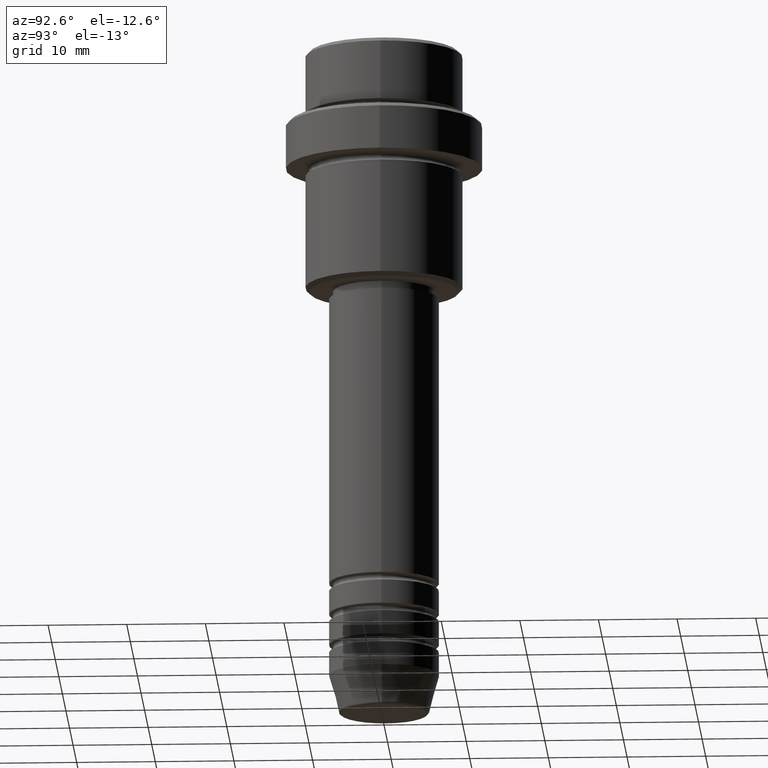
[diagram: clean part render]
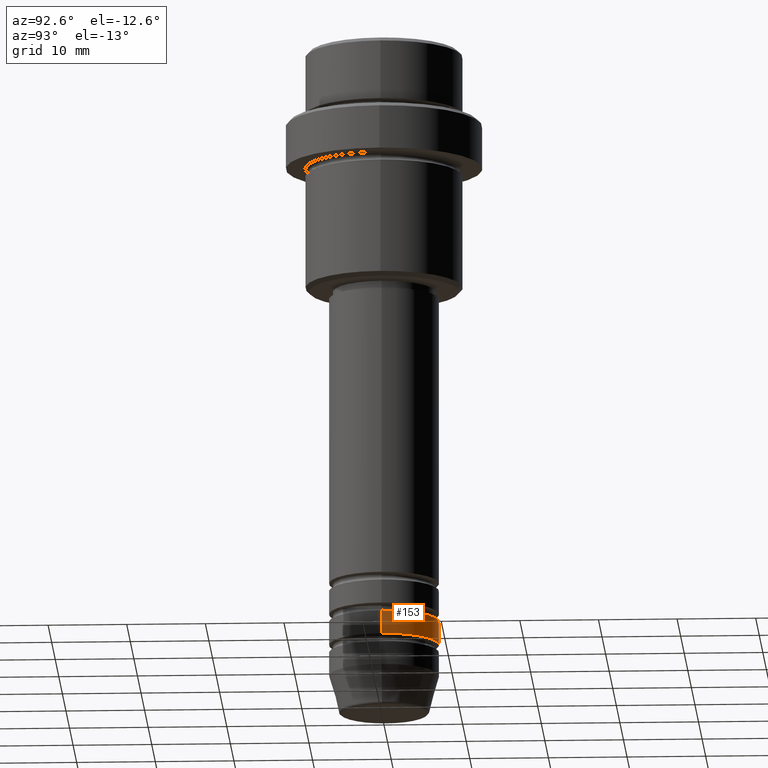
[diagram: same view with one face highlighted and labeled with its STEP entity id]
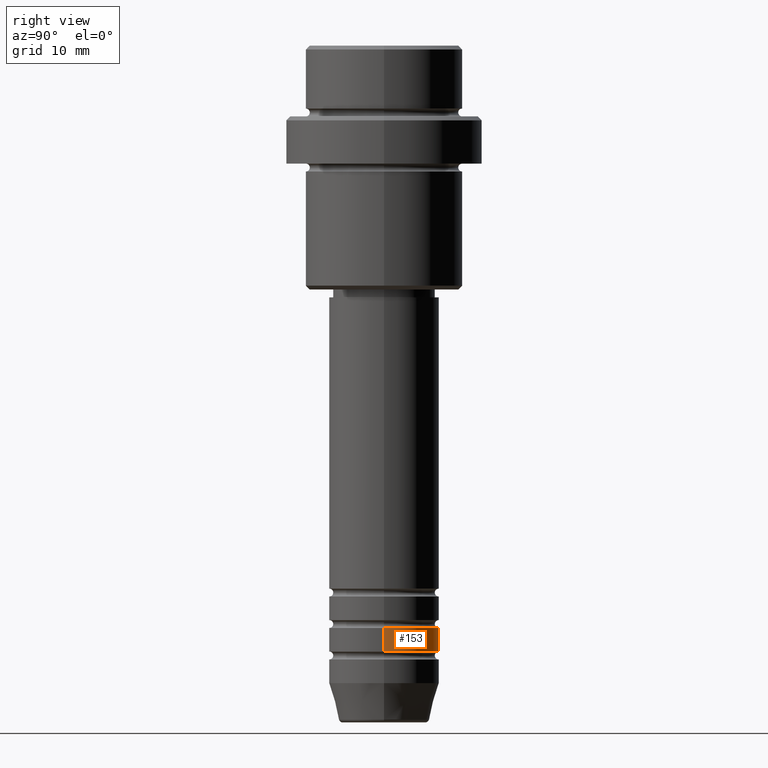
[diagram: same view with one face highlighted and labeled with its STEP entity id]
A machine part, auxiliary view. The second image highlights one B-rep face of the part: STEP entity #153.
A second angle (right view) of the same face is appended — the face is thin or edge-on in the first view.
In plain terms, the highlighted cylindrical surface (partial cylindrical patch) has radius 7 mm, axis along (-0, -0, 1).
Its self-contained STEP definition (entity closure, byte-faithful):
#29 = LINE ( 'NONE', #1332, #1052 ) ;
#84 = VERTEX_POINT ( 'NONE', #1278 ) ;
#109 = DIRECTION ( 'NONE',  ( -0.000000000000000000, -0.000000000000000000, 1.000000000000000000 ) ) ;
#121 = AXIS2_PLACEMENT_3D ( 'NONE', #830, #1254, #398 ) ;
#152 = CARTESIAN_POINT ( 'NONE',  ( 0.000000000000000000, 0.000000000000000000, -76.99999999999988631 ) ) ;
#153 = ADVANCED_FACE ( 'NONE', ( #764 ), #545, .T. ) ;
#191 = CIRCLE ( 'NONE', #121, 7.000000000000000000 ) ;
#246 = DIRECTION ( 'NONE',  ( -0.000000000000000000, -0.000000000000000000, 1.000000000000000000 ) ) ;
#309 = EDGE_CURVE ( 'NONE', #84, #468, #453, .T. ) ;
#323 = EDGE_CURVE ( 'NONE', #84, #360, #29, .T. ) ;
#353 = VERTEX_POINT ( 'NONE', #1225 ) ;
#360 = VERTEX_POINT ( 'NONE', #519 ) ;
#398 = DIRECTION ( 'NONE',  ( 1.000000000000000000, 0.000000000000000000, 0.000000000000000000 ) ) ;
#431 = ORIENTED_EDGE ( 'NONE', *, *, #323, .F. ) ;
#453 = CIRCLE ( 'NONE', #541, 7.000000000000000000 ) ;
#468 = VERTEX_POINT ( 'NONE', #1266 ) ;
#487 = EDGE_CURVE ( 'NONE', #360, #353, #191, .T. ) ;
#490 = DIRECTION ( 'NONE',  ( -0.000000000000000000, -0.000000000000000000, 1.000000000000000000 ) ) ;
#519 = CARTESIAN_POINT ( 'NONE',  ( 7.000000000000000000, 0.000000000000000000, -73.99999999999990052 ) ) ;
#522 = AXIS2_PLACEMENT_3D ( 'NONE', #646, #109, #1400 ) ;
#541 = AXIS2_PLACEMENT_3D ( 'NONE', #152, #490, #583 ) ;
#545 = CYLINDRICAL_SURFACE ( 'NONE', #522, 7.000000000000000000 ) ;
#559 = LINE ( 'NONE', #795, #1054 ) ;
#583 = DIRECTION ( 'NONE',  ( 1.000000000000000000, 0.000000000000000000, 0.000000000000000000 ) ) ;
#646 = CARTESIAN_POINT ( 'NONE',  ( 0.000000000000000000, 0.000000000000000000, 0.000000000000000000 ) ) ;
#653 = EDGE_CURVE ( 'NONE', #468, #353, #559, .T. ) ;
#691 = DIRECTION ( 'NONE',  ( -0.000000000000000000, -0.000000000000000000, 1.000000000000000000 ) ) ;
#764 = FACE_OUTER_BOUND ( 'NONE', #1248, .T. ) ;
#766 = ORIENTED_EDGE ( 'NONE', *, *, #653, .T. ) ;
#795 = CARTESIAN_POINT ( 'NONE',  ( -7.000000000000000000, 8.572527594031473190E-16, 0.000000000000000000 ) ) ;
#830 = CARTESIAN_POINT ( 'NONE',  ( 0.000000000000000000, 0.000000000000000000, -73.99999999999990052 ) ) ;
#1052 = VECTOR ( 'NONE', #691, 1000.000000000000000 ) ;
#1054 = VECTOR ( 'NONE', #246, 1000.000000000000000 ) ;
#1162 = ORIENTED_EDGE ( 'NONE', *, *, #487, .F. ) ;
#1172 = ORIENTED_EDGE ( 'NONE', *, *, #309, .T. ) ;
#1225 = CARTESIAN_POINT ( 'NONE',  ( -7.000000000000000000, 8.572527594031473190E-16, -73.99999999999990052 ) ) ;
#1248 = EDGE_LOOP ( 'NONE', ( #1172, #766, #1162, #431 ) ) ;
#1254 = DIRECTION ( 'NONE',  ( -0.000000000000000000, -0.000000000000000000, 1.000000000000000000 ) ) ;
#1266 = CARTESIAN_POINT ( 'NONE',  ( -7.000000000000000000, 8.572527594031473190E-16, -76.99999999999988631 ) ) ;
#1278 = CARTESIAN_POINT ( 'NONE',  ( 7.000000000000000000, 0.000000000000000000, -76.99999999999988631 ) ) ;
#1332 = CARTESIAN_POINT ( 'NONE',  ( 7.000000000000000000, 0.000000000000000000, 0.000000000000000000 ) ) ;
#1400 = DIRECTION ( 'NONE',  ( 1.000000000000000000, 0.000000000000000000, 0.000000000000000000 ) ) ;